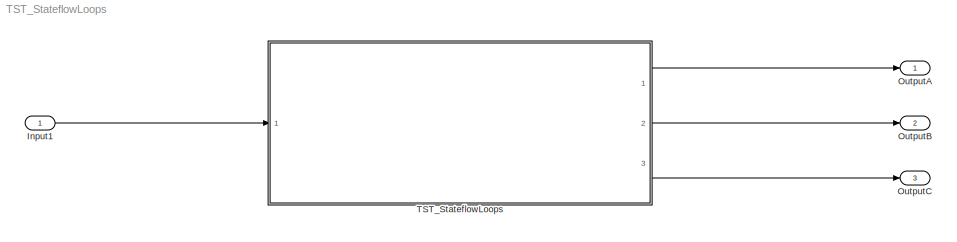
MODEL TST_StateflowLoops
KIND model
BLOCK [Inport] Input1
  BusOutputAsStruct = on
  IconDisplay = Port number
  OutDataTypeStr = uint32
  SID = 23
BLOCK [Outport] OutputA
  IconDisplay = Port number
  OutDataTypeStr = double
  PortDimensions = 1
  SID = 25
BLOCK [Outport] OutputB
  IconDisplay = Port number
  OutDataTypeStr = double
  Port = 2
  PortDimensions = 1
  SID = 32
BLOCK [Outport] OutputC
  IconDisplay = Port number
  OutDataTypeStr = double
  Port = 3
  PortDimensions = 1
  SID = 37
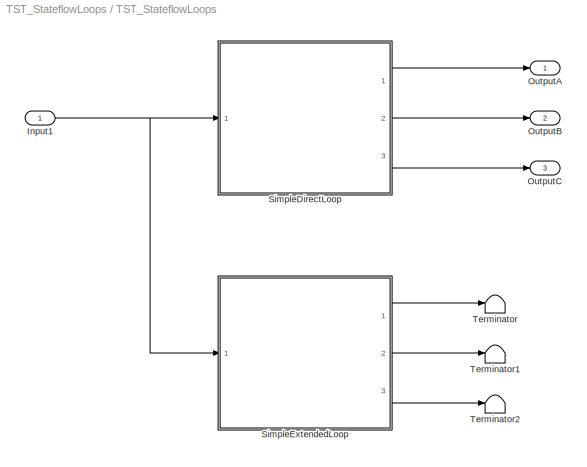
BLOCK [SubSystem] TST_StateflowLoops
  Ports = [1, 3]
  RequestExecContextInheritance = off
  SID = 2
  TreatAsAtomicUnit = on
BLOCK [Inport] TST_StateflowLoops/Input1
  BusOutputAsStruct = on
  IconDisplay = Port number
  OutDataTypeStr = uint32
  SID = 39
BLOCK [Outport] TST_StateflowLoops/OutputA
  IconDisplay = Port number
  OutDataTypeStr = double
  PortDimensions = 1
  SID = 40
BLOCK [Outport] TST_StateflowLoops/OutputB
  IconDisplay = Port number
  OutDataTypeStr = double
  Port = 2
  PortDimensions = 1
  SID = 41
BLOCK [Outport] TST_StateflowLoops/OutputC
  IconDisplay = Port number
  OutDataTypeStr = double
  Port = 3
  PortDimensions = 1
  SID = 42
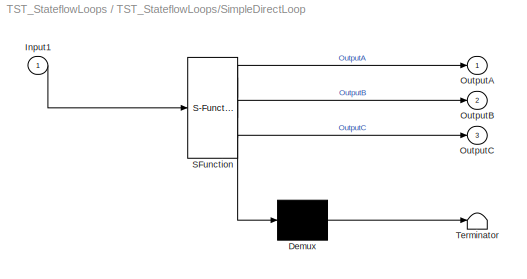
BLOCK [SubSystem] TST_StateflowLoops/SimpleDirectLoop
  ErrorFcn = Stateflow.Translate.translate
  PermitHierarchicalResolution = ExplicitOnly
  Ports = [1, 3]
  RequestExecContextInheritance = off
  SFBlockType = Chart
  SID = 43
  TreatAsAtomicUnit = on
BLOCK [Demux] TST_StateflowLoops/SimpleDirectLoop/ Demux 
  Outputs = 1
  Ports = [1, 1]
  SID = 43::14
BLOCK [S-Function] TST_StateflowLoops/SimpleDirectLoop/ SFunction 
  EnableBusSupport = off
  FunctionName = sf_sfun
  PortCounts = [1 4]
  Ports = [1, 4]
  SFcnIsStateOwnerBlock = off
  SFunctionDeploymentMode = off
  SID = 43::13
  Tag = Stateflow S-Function 1
BLOCK [Terminator] TST_StateflowLoops/SimpleDirectLoop/ Terminator 
  SID = 43::15
BLOCK [Inport] TST_StateflowLoops/SimpleDirectLoop/Input1
  IconDisplay = Port number
  SID = 43::9
BLOCK [Outport] TST_StateflowLoops/SimpleDirectLoop/OutputA
  IconDisplay = Port number
  SID = 43::10
BLOCK [Outport] TST_StateflowLoops/SimpleDirectLoop/OutputB
  IconDisplay = Port number
  Port = 2
  SID = 43::11
BLOCK [Outport] TST_StateflowLoops/SimpleDirectLoop/OutputC
  IconDisplay = Port number
  Port = 3
  SID = 43::12
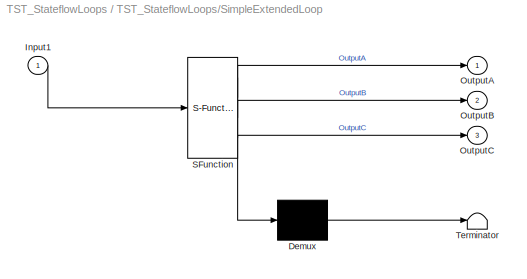
BLOCK [SubSystem] TST_StateflowLoops/SimpleExtendedLoop
  ErrorFcn = Stateflow.Translate.translate
  PermitHierarchicalResolution = ExplicitOnly
  Ports = [1, 3]
  RequestExecContextInheritance = off
  SFBlockType = Chart
  SID = 44
  TreatAsAtomicUnit = on
BLOCK [Demux] TST_StateflowLoops/SimpleExtendedLoop/ Demux 
  Outputs = 1
  Ports = [1, 1]
  SID = 44::14
BLOCK [S-Function] TST_StateflowLoops/SimpleExtendedLoop/ SFunction 
  EnableBusSupport = off
  FunctionName = sf_sfun
  PortCounts = [1 4]
  Ports = [1, 4]
  SFcnIsStateOwnerBlock = off
  SFunctionDeploymentMode = off
  SID = 44::13
  Tag = Stateflow S-Function 2
BLOCK [Terminator] TST_StateflowLoops/SimpleExtendedLoop/ Terminator 
  SID = 44::15
BLOCK [Inport] TST_StateflowLoops/SimpleExtendedLoop/Input1
  IconDisplay = Port number
  SID = 44::9
BLOCK [Outport] TST_StateflowLoops/SimpleExtendedLoop/OutputA
  IconDisplay = Port number
  SID = 44::10
BLOCK [Outport] TST_StateflowLoops/SimpleExtendedLoop/OutputB
  IconDisplay = Port number
  Port = 2
  SID = 44::11
BLOCK [Outport] TST_StateflowLoops/SimpleExtendedLoop/OutputC
  IconDisplay = Port number
  Port = 3
  SID = 44::12
BLOCK [Terminator] TST_StateflowLoops/Terminator
  SID = 45
BLOCK [Terminator] TST_StateflowLoops/Terminator1
  SID = 46
BLOCK [Terminator] TST_StateflowLoops/Terminator2
  SID = 47
LINE Input1:1 -> TST_StateflowLoops:1
NET TST_StateflowLoops/Input1:1 -> TST_StateflowLoops/SimpleDirectLoop:1, TST_StateflowLoops/SimpleExtendedLoop:1
LINE TST_StateflowLoops/SimpleDirectLoop/ Demux :1 -> TST_StateflowLoops/SimpleDirectLoop/ Terminator :1
LINE TST_StateflowLoops/SimpleDirectLoop/ SFunction :1 -> TST_StateflowLoops/SimpleDirectLoop/ Demux :1
LINE TST_StateflowLoops/SimpleDirectLoop/ SFunction :2 -> TST_StateflowLoops/SimpleDirectLoop/OutputA:1
LINE TST_StateflowLoops/SimpleDirectLoop/ SFunction :3 -> TST_StateflowLoops/SimpleDirectLoop/OutputB:1
LINE TST_StateflowLoops/SimpleDirectLoop/ SFunction :4 -> TST_StateflowLoops/SimpleDirectLoop/OutputC:1
LINE TST_StateflowLoops/SimpleDirectLoop/Input1:1 -> TST_StateflowLoops/SimpleDirectLoop/ SFunction :1
LINE TST_StateflowLoops/SimpleDirectLoop:1 -> TST_StateflowLoops/OutputA:1
LINE TST_StateflowLoops/SimpleDirectLoop:2 -> TST_StateflowLoops/OutputB:1
LINE TST_StateflowLoops/SimpleDirectLoop:3 -> TST_StateflowLoops/OutputC:1
LINE TST_StateflowLoops/SimpleExtendedLoop/ Demux :1 -> TST_StateflowLoops/SimpleExtendedLoop/ Terminator :1
LINE TST_StateflowLoops/SimpleExtendedLoop/ SFunction :1 -> TST_StateflowLoops/SimpleExtendedLoop/ Demux :1
LINE TST_StateflowLoops/SimpleExtendedLoop/ SFunction :2 -> TST_StateflowLoops/SimpleExtendedLoop/OutputA:1
LINE TST_StateflowLoops/SimpleExtendedLoop/ SFunction :3 -> TST_StateflowLoops/SimpleExtendedLoop/OutputB:1
LINE TST_StateflowLoops/SimpleExtendedLoop/ SFunction :4 -> TST_StateflowLoops/SimpleExtendedLoop/OutputC:1
LINE TST_StateflowLoops/SimpleExtendedLoop/Input1:1 -> TST_StateflowLoops/SimpleExtendedLoop/ SFunction :1
LINE TST_StateflowLoops/SimpleExtendedLoop:1 -> TST_StateflowLoops/Terminator:1
LINE TST_StateflowLoops/SimpleExtendedLoop:2 -> TST_StateflowLoops/Terminator1:1
LINE TST_StateflowLoops/SimpleExtendedLoop:3 -> TST_StateflowLoops/Terminator2:1
LINE TST_StateflowLoops:1 -> OutputA:1
LINE TST_StateflowLoops:2 -> OutputB:1
LINE TST_StateflowLoops:3 -> OutputC:1
note: NET lines group one-source signal fan-out (src -> all destinations, sorted); 1:1 wires keep LINE
CHART TST_StateflowLoops/SimpleDirectLoop states=1 transitions=6
  STATE_LABEL 'simple single-transition loop'
CHART TST_StateflowLoops/SimpleExtendedLoop states=2 transitions=7
  STATE_LABEL 'loop starts at this transition'
  STATE_LABEL 'simple loop consisting of several\\ntransitions'
